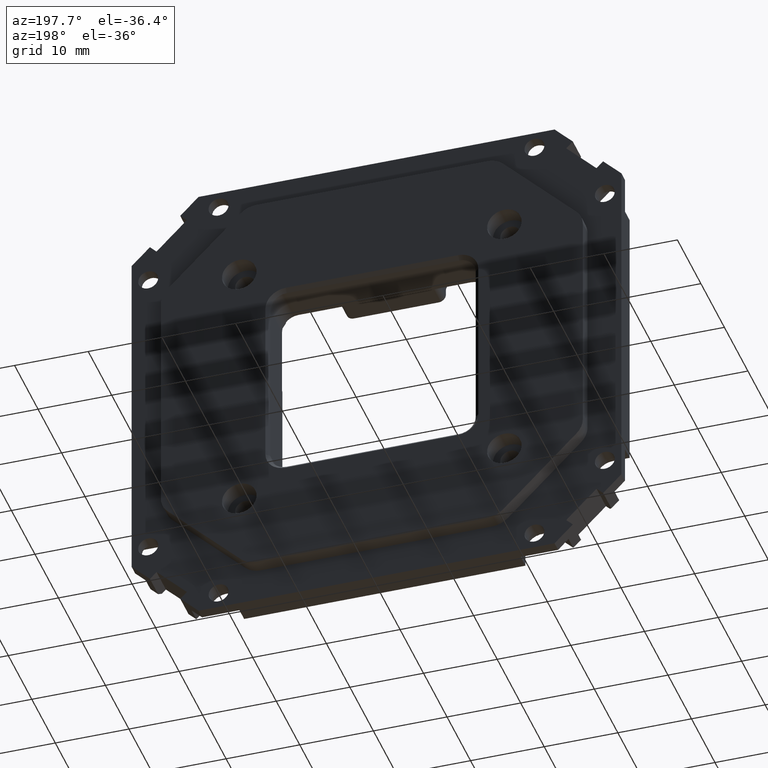
[diagram: clean part render]
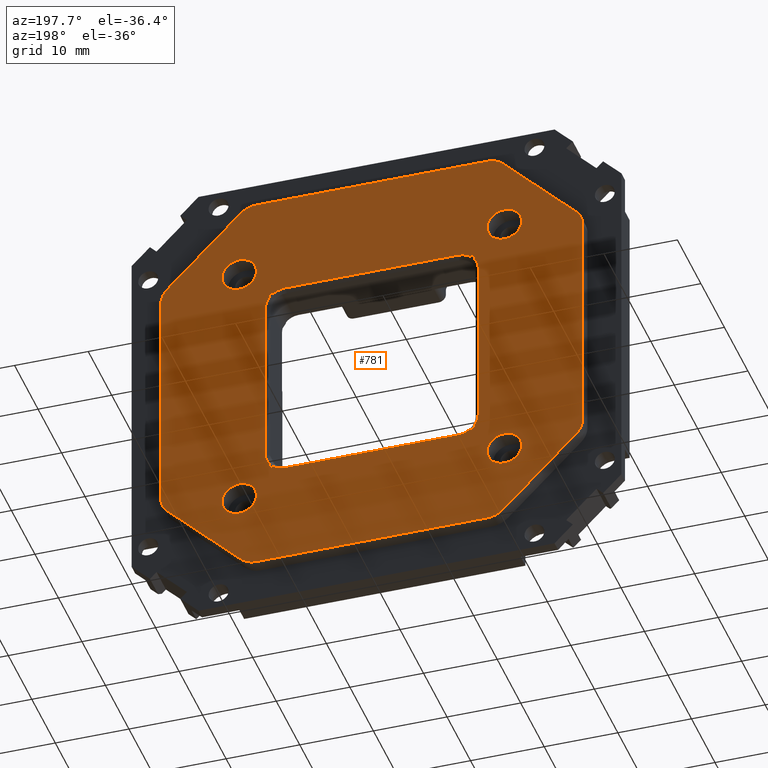
[diagram: same view with one face highlighted and labeled with its STEP entity id]
A machine part, auxiliary view. The second image highlights one B-rep face of the part: STEP entity #781.
In plain terms, the highlighted planar face has unit normal (0, 1, 0).
Its self-contained STEP definition (entity closure, byte-faithful):
#464=FACE_BOUND('',#1703,.F.);
#465=FACE_BOUND('',#1704,.F.);
#466=FACE_BOUND('',#1705,.F.);
#467=FACE_BOUND('',#1706,.F.);
#468=FACE_BOUND('',#1707,.F.);
#781=ADVANCED_FACE('',(#464,#465,#466,#467,#468,#1234),#4481,.T.);
#1234=FACE_OUTER_BOUND('',#1708,.F.);
#1703=EDGE_LOOP('',(#3621,#3622));
#1704=EDGE_LOOP('',(#3623,#3624));
#1705=EDGE_LOOP('',(#3625,#3626,#3627,#3628,#3629,#3630,#3631,#3632,#3633,
#3634,#3635,#3636,#3637,#3638,#3639,#3640,#3641,#3642,#3643,#3644));
#1706=EDGE_LOOP('',(#3645,#3646));
#1707=EDGE_LOOP('',(#3647,#3648));
#1708=EDGE_LOOP('',(#3649,#3650,#3651,#3652,#3653,#3654,#3655,#3656,#3657,
#3658,#3659,#3660,#3661,#3662,#3663,#3664));
#3621=ORIENTED_EDGE('',*,*,#6646,.T.);
#3622=ORIENTED_EDGE('',*,*,#6645,.T.);
#3623=ORIENTED_EDGE('',*,*,#6654,.T.);
#3624=ORIENTED_EDGE('',*,*,#6653,.T.);
#3625=ORIENTED_EDGE('',*,*,#7451,.T.);
#3626=ORIENTED_EDGE('',*,*,#7452,.T.);
#3627=ORIENTED_EDGE('',*,*,#7435,.T.);
#3628=ORIENTED_EDGE('',*,*,#7433,.T.);
#3629=ORIENTED_EDGE('',*,*,#7448,.T.);
#3630=ORIENTED_EDGE('',*,*,#7463,.T.);
#3631=ORIENTED_EDGE('',*,*,#7464,.T.);
#3632=ORIENTED_EDGE('',*,*,#7447,.T.);
#3633=ORIENTED_EDGE('',*,*,#7445,.T.);
#3634=ORIENTED_EDGE('',*,*,#7444,.T.);
#3635=ORIENTED_EDGE('',*,*,#7459,.T.);
#3636=ORIENTED_EDGE('',*,*,#7460,.T.);
#3637=ORIENTED_EDGE('',*,*,#7443,.T.);
#3638=ORIENTED_EDGE('',*,*,#7441,.T.);
#3639=ORIENTED_EDGE('',*,*,#7440,.T.);
#3640=ORIENTED_EDGE('',*,*,#7455,.T.);
#3641=ORIENTED_EDGE('',*,*,#7456,.T.);
#3642=ORIENTED_EDGE('',*,*,#7439,.T.);
#3643=ORIENTED_EDGE('',*,*,#7437,.T.);
#3644=ORIENTED_EDGE('',*,*,#7436,.T.);
#3645=ORIENTED_EDGE('',*,*,#6658,.T.);
#3646=ORIENTED_EDGE('',*,*,#6657,.T.);
#3647=ORIENTED_EDGE('',*,*,#6650,.T.);
#3648=ORIENTED_EDGE('',*,*,#6649,.T.);
#3649=ORIENTED_EDGE('',*,*,#7481,.T.);
#3650=ORIENTED_EDGE('',*,*,#6637,.F.);
#3651=ORIENTED_EDGE('',*,*,#7488,.T.);
#3652=ORIENTED_EDGE('',*,*,#6633,.F.);
#3653=ORIENTED_EDGE('',*,*,#7487,.T.);
#3654=ORIENTED_EDGE('',*,*,#6629,.F.);
#3655=ORIENTED_EDGE('',*,*,#7486,.T.);
#3656=ORIENTED_EDGE('',*,*,#6625,.F.);
#3657=ORIENTED_EDGE('',*,*,#7485,.T.);
#3658=ORIENTED_EDGE('',*,*,#6621,.F.);
#3659=ORIENTED_EDGE('',*,*,#7484,.T.);
#3660=ORIENTED_EDGE('',*,*,#6617,.F.);
#3661=ORIENTED_EDGE('',*,*,#7483,.T.);
#3662=ORIENTED_EDGE('',*,*,#6613,.F.);
#3663=ORIENTED_EDGE('',*,*,#7482,.T.);
#3664=ORIENTED_EDGE('',*,*,#6641,.F.);
#4481=PLANE('',#10790);
#6113=CIRCLE('',#10186,3.);
#6114=CIRCLE('',#10187,3.);
#6115=CIRCLE('',#10188,3.);
#6116=CIRCLE('',#10189,3.);
#6117=CIRCLE('',#10190,3.);
#6118=CIRCLE('',#10191,3.);
#6119=CIRCLE('',#10192,3.);
#6120=CIRCLE('',#10193,3.);
#6121=CIRCLE('',#10194,2.35);
#6122=CIRCLE('',#10195,2.35);
#6125=CIRCLE('',#10198,2.35);
#6126=CIRCLE('',#10199,2.35);
#6129=CIRCLE('',#10202,2.35);
#6130=CIRCLE('',#10203,2.35);
#6133=CIRCLE('',#10206,2.35);
#6134=CIRCLE('',#10207,2.35);
#6357=CIRCLE('',#10430,2.75);
#6358=CIRCLE('',#10431,2.75);
#6359=CIRCLE('',#10432,2.75);
#6360=CIRCLE('',#10433,2.75);
#6361=CIRCLE('',#10434,2.75);
#6362=CIRCLE('',#10435,2.75);
#6363=CIRCLE('',#10436,2.75000000000001);
#6364=CIRCLE('',#10437,2.75000000000001);
#6613=EDGE_CURVE('',#9940,#9939,#6113,.T.);
#6617=EDGE_CURVE('',#9934,#9933,#6114,.T.);
#6621=EDGE_CURVE('',#9929,#9928,#6115,.T.);
#6625=EDGE_CURVE('',#9924,#9923,#6116,.T.);
#6629=EDGE_CURVE('',#9919,#9918,#6117,.T.);
#6633=EDGE_CURVE('',#9914,#9913,#6118,.T.);
#6637=EDGE_CURVE('',#9909,#9908,#6119,.T.);
#6641=EDGE_CURVE('',#9904,#9903,#6120,.T.);
#6645=EDGE_CURVE('',#9900,#9899,#6121,.T.);
#6646=EDGE_CURVE('',#9899,#9900,#6122,.T.);
#6649=EDGE_CURVE('',#9896,#9895,#6125,.T.);
#6650=EDGE_CURVE('',#9895,#9896,#6126,.T.);
#6653=EDGE_CURVE('',#9892,#9891,#6129,.T.);
#6654=EDGE_CURVE('',#9891,#9892,#6130,.T.);
#6657=EDGE_CURVE('',#9888,#9887,#6133,.T.);
#6658=EDGE_CURVE('',#9887,#9888,#6134,.T.);
#7433=EDGE_CURVE('',#9408,#9407,#8341,.T.);
#7435=EDGE_CURVE('',#9404,#9408,#6357,.T.);
#7436=EDGE_CURVE('',#9403,#9402,#6358,.T.);
#7437=EDGE_CURVE('',#9401,#9403,#8343,.T.);
#7439=EDGE_CURVE('',#9398,#9401,#6359,.T.);
#7440=EDGE_CURVE('',#9397,#9396,#6360,.T.);
#7441=EDGE_CURVE('',#9395,#9397,#8345,.T.);
#7443=EDGE_CURVE('',#9392,#9395,#6361,.T.);
#7444=EDGE_CURVE('',#9391,#9390,#6362,.T.);
#7445=EDGE_CURVE('',#9389,#9391,#8347,.T.);
#7447=EDGE_CURVE('',#9386,#9389,#6363,.T.);
#7448=EDGE_CURVE('',#9407,#9385,#6364,.T.);
#7451=EDGE_CURVE('',#9402,#9384,#8351,.T.);
#7452=EDGE_CURVE('',#9384,#9404,#8352,.T.);
#7455=EDGE_CURVE('',#9396,#9383,#8355,.T.);
#7456=EDGE_CURVE('',#9383,#9398,#8356,.T.);
#7459=EDGE_CURVE('',#9390,#9382,#8359,.T.);
#7460=EDGE_CURVE('',#9382,#9392,#8360,.T.);
#7463=EDGE_CURVE('',#9385,#9381,#8363,.T.);
#7464=EDGE_CURVE('',#9381,#9386,#8364,.T.);
#7481=EDGE_CURVE('',#9904,#9908,#8381,.T.);
#7482=EDGE_CURVE('',#9940,#9903,#8382,.T.);
#7483=EDGE_CURVE('',#9934,#9939,#8383,.T.);
#7484=EDGE_CURVE('',#9929,#9933,#8384,.T.);
#7485=EDGE_CURVE('',#9924,#9928,#8385,.T.);
#7486=EDGE_CURVE('',#9919,#9923,#8386,.T.);
#7487=EDGE_CURVE('',#9914,#9918,#8387,.T.);
#7488=EDGE_CURVE('',#9909,#9913,#8388,.T.);
#8341=LINE('',#15449,#9189);
#8343=LINE('',#15453,#9191);
#8345=LINE('',#15457,#9193);
#8347=LINE('',#15461,#9195);
#8351=LINE('',#15467,#9199);
#8352=LINE('',#15468,#9200);
#8355=LINE('',#15471,#9203);
#8356=LINE('',#15472,#9204);
#8359=LINE('',#15475,#9207);
#8360=LINE('',#15476,#9208);
#8363=LINE('',#15479,#9211);
#8364=LINE('',#15480,#9212);
#8381=LINE('',#15497,#9229);
#8382=LINE('',#15498,#9230);
#8383=LINE('',#15499,#9231);
#8384=LINE('',#15500,#9232);
#8385=LINE('',#15501,#9233);
#8386=LINE('',#15502,#9234);
#8387=LINE('',#15503,#9235);
#8388=LINE('',#15504,#9236);
#9189=VECTOR('',#12217,23.4);
#9191=VECTOR('',#12223,23.3999999999974);
#9193=VECTOR('',#12229,23.4);
#9195=VECTOR('',#12235,23.3999999999974);
#9199=VECTOR('',#12243,0.66886116991585);
#9200=VECTOR('',#12244,0.668861169915829);
#9203=VECTOR('',#12247,0.668861169915816);
#9204=VECTOR('',#12248,0.668861169915818);
#9207=VECTOR('',#12251,0.66886116991579);
#9208=VECTOR('',#12252,0.668861169915793);
#9211=VECTOR('',#12255,0.668861169915814);
#9212=VECTOR('',#12256,0.6688611699158);
#9229=VECTOR('',#12273,14.0816590949643);
#9230=VECTOR('',#12274,31.3855267271879);
#9231=VECTOR('',#12275,14.0816590949645);
#9232=VECTOR('',#12276,31.3855267271861);
#9233=VECTOR('',#12277,14.0816590949648);
#9234=VECTOR('',#12278,31.3855267271864);
#9235=VECTOR('',#12279,14.0816590949649);
#9236=VECTOR('',#12280,31.3855267271867);
#9381=VERTEX_POINT('',#13441);
#9382=VERTEX_POINT('',#13442);
#9383=VERTEX_POINT('',#13443);
#9384=VERTEX_POINT('',#13444);
#9385=VERTEX_POINT('',#13445);
#9386=VERTEX_POINT('',#13446);
#9389=VERTEX_POINT('',#13449);
#9390=VERTEX_POINT('',#13450);
#9391=VERTEX_POINT('',#13451);
#9392=VERTEX_POINT('',#13452);
#9395=VERTEX_POINT('',#13455);
#9396=VERTEX_POINT('',#13456);
#9397=VERTEX_POINT('',#13457);
#9398=VERTEX_POINT('',#13458);
#9401=VERTEX_POINT('',#13461);
#9402=VERTEX_POINT('',#13462);
#9403=VERTEX_POINT('',#13463);
#9404=VERTEX_POINT('',#13464);
#9407=VERTEX_POINT('',#13467);
#9408=VERTEX_POINT('',#13468);
#9887=VERTEX_POINT('',#13947);
#9888=VERTEX_POINT('',#13948);
#9891=VERTEX_POINT('',#13951);
#9892=VERTEX_POINT('',#13952);
#9895=VERTEX_POINT('',#13955);
#9896=VERTEX_POINT('',#13956);
#9899=VERTEX_POINT('',#13959);
#9900=VERTEX_POINT('',#13960);
#9903=VERTEX_POINT('',#13963);
#9904=VERTEX_POINT('',#13964);
#9908=VERTEX_POINT('',#13968);
#9909=VERTEX_POINT('',#13969);
#9913=VERTEX_POINT('',#13973);
#9914=VERTEX_POINT('',#13974);
#9918=VERTEX_POINT('',#13978);
#9919=VERTEX_POINT('',#13979);
#9923=VERTEX_POINT('',#13983);
#9924=VERTEX_POINT('',#13984);
#9928=VERTEX_POINT('',#13988);
#9929=VERTEX_POINT('',#13989);
#9933=VERTEX_POINT('',#13993);
#9934=VERTEX_POINT('',#13994);
#9939=VERTEX_POINT('',#13999);
#9940=VERTEX_POINT('',#14000);
#10186=AXIS2_PLACEMENT_3D('',#14373,#11185,#11186);
#10187=AXIS2_PLACEMENT_3D('',#14377,#11190,#11191);
#10188=AXIS2_PLACEMENT_3D('',#14381,#11195,#11196);
#10189=AXIS2_PLACEMENT_3D('',#14385,#11200,#11201);
#10190=AXIS2_PLACEMENT_3D('',#14389,#11205,#11206);
#10191=AXIS2_PLACEMENT_3D('',#14393,#11210,#11211);
#10192=AXIS2_PLACEMENT_3D('',#14397,#11215,#11216);
#10193=AXIS2_PLACEMENT_3D('',#14401,#11220,#11221);
#10194=AXIS2_PLACEMENT_3D('',#14405,#11225,#11226);
#10195=AXIS2_PLACEMENT_3D('',#14406,#11227,#11228);
#10198=AXIS2_PLACEMENT_3D('',#14409,#11233,#11234);
#10199=AXIS2_PLACEMENT_3D('',#14410,#11235,#11236);
#10202=AXIS2_PLACEMENT_3D('',#14413,#11241,#11242);
#10203=AXIS2_PLACEMENT_3D('',#14414,#11243,#11244);
#10206=AXIS2_PLACEMENT_3D('',#14417,#11249,#11250);
#10207=AXIS2_PLACEMENT_3D('',#14418,#11251,#11252);
#10430=AXIS2_PLACEMENT_3D('',#15451,#12219,#12220);
#10431=AXIS2_PLACEMENT_3D('',#15452,#12221,#12222);
#10432=AXIS2_PLACEMENT_3D('',#15455,#12225,#12226);
#10433=AXIS2_PLACEMENT_3D('',#15456,#12227,#12228);
#10434=AXIS2_PLACEMENT_3D('',#15459,#12231,#12232);
#10435=AXIS2_PLACEMENT_3D('',#15460,#12233,#12234);
#10436=AXIS2_PLACEMENT_3D('',#15463,#12237,#12238);
#10437=AXIS2_PLACEMENT_3D('',#15464,#12239,#12240);
#10790=AXIS2_PLACEMENT_3D('',#15957,#13085,#13086);
#11185=DIRECTION('',(0.,1.,0.));
#11186=DIRECTION('',(-1.,0.,0.));
#11190=DIRECTION('',(0.,1.,0.));
#11191=DIRECTION('',(-0.707106781186462,0.,0.707106781186633));
#11195=DIRECTION('',(0.,1.,0.));
#11196=DIRECTION('',(0.,0.,1.));
#11200=DIRECTION('',(0.,1.,0.));
#11201=DIRECTION('',(0.707106781186543,0.,0.707106781186552));
#11205=DIRECTION('',(0.,1.,0.));
#11206=DIRECTION('',(1.,0.,0.));
#11210=DIRECTION('',(0.,1.,0.));
#11211=DIRECTION('',(0.707106781186642,0.,-0.707106781186453));
#11215=DIRECTION('',(0.,1.,0.));
#11216=DIRECTION('',(0.,0.,-1.));
#11220=DIRECTION('',(0.,1.,0.));
#11221=DIRECTION('',(-0.707106781186515,0.,-0.70710678118658));
#11225=DIRECTION('',(0.,1.,0.));
#11226=DIRECTION('',(0.,0.,1.));
#11227=DIRECTION('',(0.,1.,0.));
#11228=DIRECTION('',(0.,0.,-1.));
#11233=DIRECTION('',(0.,1.,0.));
#11234=DIRECTION('',(0.,0.,1.));
#11235=DIRECTION('',(0.,1.,0.));
#11236=DIRECTION('',(0.,0.,-1.));
#11241=DIRECTION('',(0.,1.,0.));
#11242=DIRECTION('',(0.,0.,1.));
#11243=DIRECTION('',(0.,1.,0.));
#11244=DIRECTION('',(0.,0.,-1.));
#11249=DIRECTION('',(0.,1.,0.));
#11250=DIRECTION('',(0.,0.,1.));
#11251=DIRECTION('',(0.,1.,0.));
#11252=DIRECTION('',(0.,0.,-1.));
#12217=DIRECTION('',(0.,0.,-1.));
#12219=DIRECTION('',(0.,1.,0.));
#12220=DIRECTION('',(0.818409513088994,0.,0.574635422581515));
#12221=DIRECTION('',(0.,1.,0.));
#12222=DIRECTION('',(0.,0.,1.));
#12223=DIRECTION('',(1.,0.,0.));
#12225=DIRECTION('',(0.,1.,0.));
#12226=DIRECTION('',(-0.57463542258151,0.,0.818409513088997));
#12227=DIRECTION('',(0.,1.,0.));
#12228=DIRECTION('',(-1.,0.,0.));
#12229=DIRECTION('',(0.,0.,1.));
#12231=DIRECTION('',(0.,1.,0.));
#12232=DIRECTION('',(-0.818409513088991,0.,-0.574635422581518));
#12233=DIRECTION('',(0.,1.,0.));
#12234=DIRECTION('',(0.,0.,-1.));
#12235=DIRECTION('',(-1.,0.,0.));
#12237=DIRECTION('',(0.,1.,0.));
#12238=DIRECTION('',(0.574635422581524,0.,-0.818409513088988));
#12239=DIRECTION('',(0.,1.,0.));
#12240=DIRECTION('',(1.,0.,0.));
#12243=DIRECTION('',(1.,0.,0.));
#12244=DIRECTION('',(0.,0.,-1.));
#12247=DIRECTION('',(0.,0.,1.));
#12248=DIRECTION('',(1.,0.,0.));
#12251=DIRECTION('',(-1.,0.,0.));
#12252=DIRECTION('',(0.,0.,1.));
#12255=DIRECTION('',(0.,0.,-1.));
#12256=DIRECTION('',(-1.,0.,0.));
#12273=DIRECTION('',(0.707106781186575,0.,-0.70710678118652));
#12274=DIRECTION('',(0.,0.,-1.));
#12275=DIRECTION('',(-0.707106781186566,0.,-0.707106781186529));
#12276=DIRECTION('',(-1.,0.,0.));
#12277=DIRECTION('',(-0.707106781186554,0.,0.707106781186541));
#12278=DIRECTION('',(0.,0.,1.));
#12279=DIRECTION('',(0.707106781186514,0.,0.707106781186581));
#12280=DIRECTION('',(1.,0.,0.));
#13085=DIRECTION('',(0.,1.,0.));
#13086=DIRECTION('',(1.,0.,0.));
#13441=CARTESIAN_POINT('',(13.9499999999989,2.00000000000001,-13.95));
#13442=CARTESIAN_POINT('',(-13.9499999999985,2.00000000000003,-13.95));
#13443=CARTESIAN_POINT('',(-13.9499999999985,2.00000000000001,13.95));
#13444=CARTESIAN_POINT('',(13.9499999999989,1.99999999999999,13.95));
#13445=CARTESIAN_POINT('',(13.950417440662,2.00000000000001,-13.2805445514275));
#13446=CARTESIAN_POINT('',(13.2805445514264,2.00000000000001,-13.9504174406632));
#13449=CARTESIAN_POINT('',(11.6999999999989,2.00000000000001,-14.45));
#13450=CARTESIAN_POINT('',(-13.280544551426,2.00000000000002,-13.9504174406632));
#13451=CARTESIAN_POINT('',(-11.6999999999985,2.00000000000002,-14.45));
#13452=CARTESIAN_POINT('',(-13.9504174406617,2.00000000000002,-13.2805445514275));
#13455=CARTESIAN_POINT('',(-14.4499999999985,2.00000000000002,-11.7));
#13456=CARTESIAN_POINT('',(-13.9504174406617,2.00000000000001,13.2805445514275));
#13457=CARTESIAN_POINT('',(-14.4499999999985,2.00000000000001,11.7));
#13458=CARTESIAN_POINT('',(-13.280544551426,2.00000000000001,13.9504174406632));
#13461=CARTESIAN_POINT('',(-11.6999999999985,2.00000000000001,14.45));
#13462=CARTESIAN_POINT('',(13.2805445514264,1.99999999999999,13.9504174406631));
#13463=CARTESIAN_POINT('',(11.6999999999989,2.,14.45));
#13464=CARTESIAN_POINT('',(13.9504174406621,1.99999999999999,13.2805445514275));
#13467=CARTESIAN_POINT('',(14.4499999999989,2.,-11.7));
#13468=CARTESIAN_POINT('',(14.4499999999989,1.99999999999999,11.7));
#13947=CARTESIAN_POINT('',(18.0000039036254,1.99999999999999,15.6499965104515));
#13948=CARTESIAN_POINT('',(18.0000039036254,1.99999999999999,20.3499965104515));
#13951=CARTESIAN_POINT('',(18.0000004111782,2.,-20.3499999970873));
#13952=CARTESIAN_POINT('',(18.0000004111782,2.,-15.6499999970872));
#13955=CARTESIAN_POINT('',(-17.9999960963606,2.00000000000003,-20.3499965046399));
#13956=CARTESIAN_POINT('',(-17.9999960963606,2.00000000000003,-15.6499965046399));
#13959=CARTESIAN_POINT('',(-17.9999926039133,2.00000000000001,15.6500000028988));
#13960=CARTESIAN_POINT('',(-17.9999926039133,2.00000000000001,20.3500000028988));
#13963=CARTESIAN_POINT('',(-28.6499688020819,2.00000000000005,-15.6927633635941));
#13964=CARTESIAN_POINT('',(-27.7712891456414,2.00000000000005,-17.8140837071538));
#13968=CARTESIAN_POINT('',(-17.8140525092346,2.00000000000005,-27.7713203435599));
#13969=CARTESIAN_POINT('',(-15.692732165675,2.00000000000005,-28.6500000000001));
#13973=CARTESIAN_POINT('',(15.6927945615118,2.00000000000003,-28.6500000000004));
#13974=CARTESIAN_POINT('',(17.8141149050716,2.00000000000002,-27.7713203435598));
#13978=CARTESIAN_POINT('',(27.771351541478,2.00000000000001,-17.8140837071525));
#13979=CARTESIAN_POINT('',(28.6500311979183,2.00000000000001,-15.6927633635929));
#13983=CARTESIAN_POINT('',(28.6500311979181,2.,15.6927633635935));
#13984=CARTESIAN_POINT('',(27.7713515414777,2.,17.8140837071532));
#13988=CARTESIAN_POINT('',(17.8141149050708,2.,27.7713203435599));
#13989=CARTESIAN_POINT('',(15.6927945615112,2.00000000000001,28.6500000000003));
#13993=CARTESIAN_POINT('',(-15.6927321656749,2.00000000000004,28.6500000000002));
#13994=CARTESIAN_POINT('',(-17.8140525092346,2.00000000000007,27.7713203435599));
#13999=CARTESIAN_POINT('',(-27.7712891456415,2.00000000000003,17.8140837071535));
#14000=CARTESIAN_POINT('',(-28.6499688020819,2.00000000000004,15.6927633635938));
#14373=CARTESIAN_POINT('',(-25.6499688020819,2.00000000000002,15.6927633635938));
#14377=CARTESIAN_POINT('',(-15.6927321656752,2.00000000000001,25.65));
#14381=CARTESIAN_POINT('',(15.6927945615112,1.99999999999999,25.6500000000003));
#14385=CARTESIAN_POINT('',(25.6500311979181,1.99999999999998,15.6927633635935));
#14389=CARTESIAN_POINT('',(25.6500311979183,2.,-15.6927633635929));
#14393=CARTESIAN_POINT('',(15.6927945615116,2.00000000000001,-25.6500000000004));
#14397=CARTESIAN_POINT('',(-15.692732165675,2.00000000000003,-25.6500000000001));
#14401=CARTESIAN_POINT('',(-25.6499688020819,2.00000000000003,-15.6927633635941));
#14405=CARTESIAN_POINT('',(-17.9999926039133,2.00000000000001,18.0000000028988));
#14406=CARTESIAN_POINT('',(-17.9999926039133,2.00000000000001,18.0000000028988));
#14409=CARTESIAN_POINT('',(-17.9999960963606,2.00000000000003,-17.9999965046399));
#14410=CARTESIAN_POINT('',(-17.9999960963606,2.00000000000003,-17.9999965046399));
#14413=CARTESIAN_POINT('',(18.0000004111782,2.,-17.9999999970873));
#14414=CARTESIAN_POINT('',(18.0000004111782,2.,-17.9999999970873));
#14417=CARTESIAN_POINT('',(18.0000039036254,1.99999999999999,17.9999965104515));
#14418=CARTESIAN_POINT('',(18.0000039036254,1.99999999999999,17.9999965104515));
#15449=CARTESIAN_POINT('',(14.4499999999989,1.99999999999999,11.7));
#15451=CARTESIAN_POINT('',(11.6999999999989,2.,11.6999999999999));
#15452=CARTESIAN_POINT('',(11.6999999999989,2.,11.6999999999999));
#15453=CARTESIAN_POINT('',(-11.6999999999985,2.00000000000001,14.45));
#15455=CARTESIAN_POINT('',(-11.6999999999985,2.00000000000001,11.7));
#15456=CARTESIAN_POINT('',(-11.6999999999985,2.00000000000001,11.7));
#15457=CARTESIAN_POINT('',(-14.4499999999985,2.00000000000002,-11.7));
#15459=CARTESIAN_POINT('',(-11.6999999999985,2.00000000000002,-11.7));
#15460=CARTESIAN_POINT('',(-11.6999999999985,2.00000000000002,-11.7));
#15461=CARTESIAN_POINT('',(11.6999999999989,2.00000000000001,-14.45));
#15463=CARTESIAN_POINT('',(11.6999999999989,2.00000000000001,-11.7));
#15464=CARTESIAN_POINT('',(11.6999999999989,2.00000000000001,-11.7));
#15467=CARTESIAN_POINT('',(13.281138830083,1.99999999999999,13.95));
#15468=CARTESIAN_POINT('',(13.9499999999989,1.99999999999999,13.95));
#15471=CARTESIAN_POINT('',(-13.9499999999985,2.00000000000001,13.2811388300842));
#15472=CARTESIAN_POINT('',(-13.9499999999985,2.00000000000001,13.95));
#15475=CARTESIAN_POINT('',(-13.2811388300827,2.00000000000002,-13.95));
#15476=CARTESIAN_POINT('',(-13.9499999999985,2.00000000000003,-13.95));
#15479=CARTESIAN_POINT('',(13.9499999999989,2.00000000000001,-13.2811388300842));
#15480=CARTESIAN_POINT('',(13.9499999999989,2.00000000000001,-13.95));
#15497=CARTESIAN_POINT('',(-27.7712891456414,2.00000000000004,-17.8140837071538));
#15498=CARTESIAN_POINT('',(-28.6499688020819,2.00000000000002,15.6927633635939));
#15499=CARTESIAN_POINT('',(-17.8140525092346,2.00000000000001,27.7713203435599));
#15500=CARTESIAN_POINT('',(15.6927945615112,1.99999999999998,28.6500000000003));
#15501=CARTESIAN_POINT('',(27.7713515414777,1.99999999999998,17.8140837071532));
#15502=CARTESIAN_POINT('',(28.6500311979183,2.,-15.6927633635929));
#15503=CARTESIAN_POINT('',(17.8141149050716,2.00000000000001,-27.7713203435598));
#15504=CARTESIAN_POINT('',(-15.692732165675,2.00000000000003,-28.6500000000001));
#15957=CARTESIAN_POINT('',(-29.2229688020819,2.00000000000001,29.2230000000003));